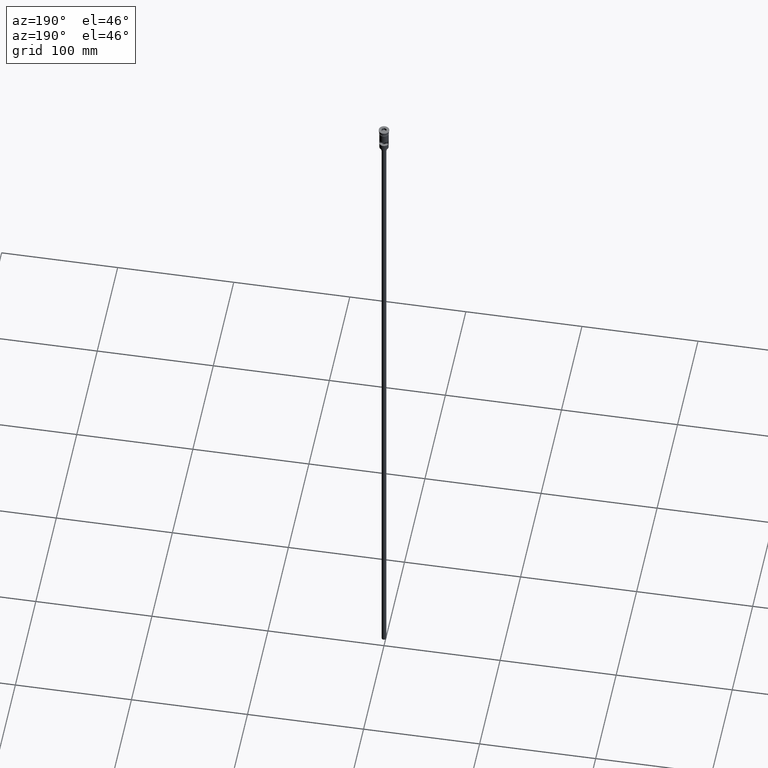
[diagram: clean part render]
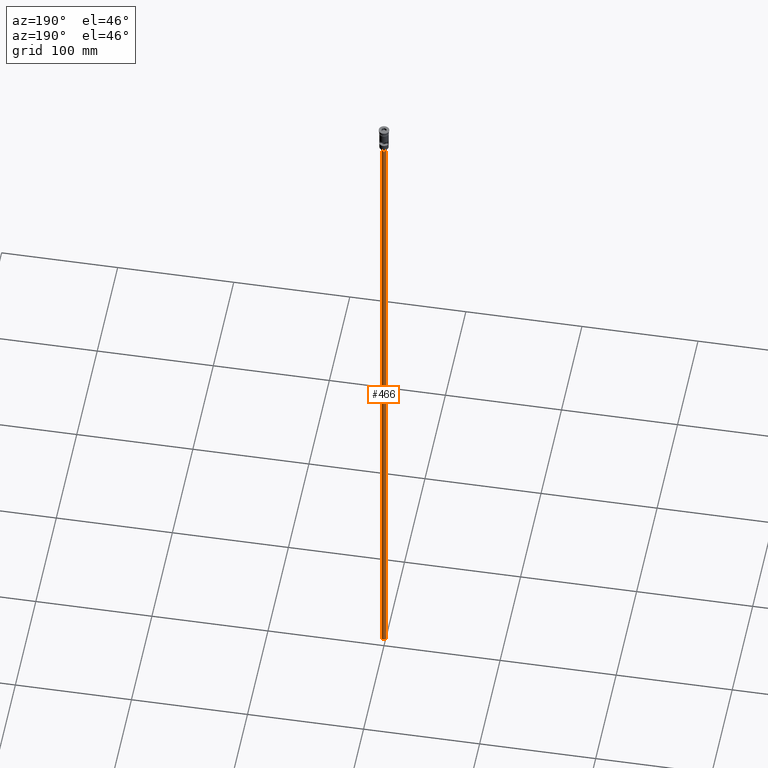
[diagram: same view with one face highlighted and labeled with its STEP entity id]
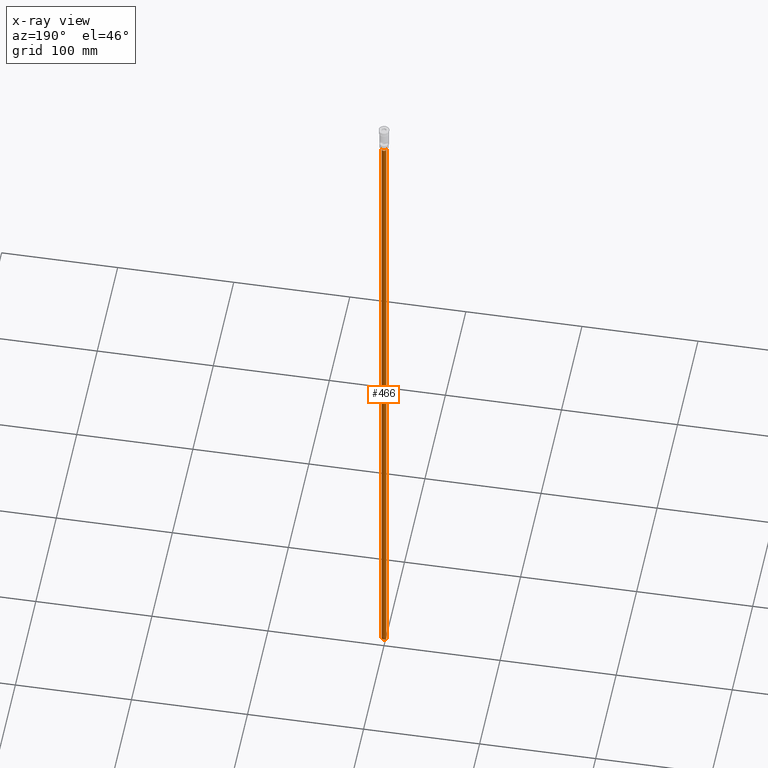
[diagram: x-ray of the same camera — body ghosted, the highlighted face saturated]
A machine part, auxiliary view. The second image highlights one B-rep face of the part: STEP entity #466.
The next image is the same camera in x-ray: the body ghosted, the highlighted face saturated — about 0% of this face is hidden behind the body in this view.
In plain terms, the highlighted cylindrical surface (edge-blend (fillet) strip) has radius 2 mm, axis along (-0, -0, 1).
Its self-contained STEP definition (entity closure, byte-faithful):
#69 = CARTESIAN_POINT ( 'NONE',  ( 0.000000000000000000, 0.000000000000000000, -23.49999999999999645 ) ) ;
#103 = CARTESIAN_POINT ( 'NONE',  ( -2.000000000000000000, 2.449293598294706414E-16, -620.4999999999998863 ) ) ;
#107 = DIRECTION ( 'NONE',  ( -0.000000000000000000, -0.000000000000000000, 1.000000000000000000 ) ) ;
#118 = ORIENTED_EDGE ( 'NONE', *, *, #374, .T. ) ;
#137 = VECTOR ( 'NONE', #415, 1000.000000000000000 ) ;
#138 = CARTESIAN_POINT ( 'NONE',  ( -2.000000000000000000, 2.449293598294706414E-16, -620.4999999999998863 ) ) ;
#208 = CIRCLE ( 'NONE', #842, 2.000000000000000000 ) ;
#224 = ORIENTED_EDGE ( 'NONE', *, *, #1040, .F. ) ;
#228 = VERTEX_POINT ( 'NONE', #393 ) ;
#233 = AXIS2_PLACEMENT_3D ( 'NONE', #442, #428, #1591 ) ;
#274 = VERTEX_POINT ( 'NONE', #138 ) ;
#328 = DIRECTION ( 'NONE',  ( -0.000000000000000000, -0.000000000000000000, 1.000000000000000000 ) ) ;
#342 = VERTEX_POINT ( 'NONE', #676 ) ;
#374 = EDGE_CURVE ( 'NONE', #274, #1073, #695, .T. ) ;
#393 = CARTESIAN_POINT ( 'NONE',  ( 2.000000000000000000, 0.000000000000000000, -620.4999999999998863 ) ) ;
#397 = DIRECTION ( 'NONE',  ( 0.000000000000000000, 0.000000000000000000, -1.000000000000000000 ) ) ;
#415 = DIRECTION ( 'NONE',  ( -0.000000000000000000, -0.000000000000000000, 1.000000000000000000 ) ) ;
#428 = DIRECTION ( 'NONE',  ( 0.000000000000000000, 0.000000000000000000, -1.000000000000000000 ) ) ;
#442 = CARTESIAN_POINT ( 'NONE',  ( 0.000000000000000000, 0.000000000000000000, -620.4999999999998863 ) ) ;
#451 = CARTESIAN_POINT ( 'NONE',  ( 0.000000000000000000, 0.000000000000000000, -620.4999999999998863 ) ) ;
#466 = ADVANCED_FACE ( 'NONE', ( #1354 ), #1201, .T. ) ;
#676 = CARTESIAN_POINT ( 'NONE',  ( 2.000000000000000000, 0.000000000000000000, -23.49999999999999645 ) ) ;
#695 = LINE ( 'NONE', #103, #1026 ) ;
#842 = AXIS2_PLACEMENT_3D ( 'NONE', #69, #397, #1005 ) ;
#914 = EDGE_CURVE ( 'NONE', #1073, #342, #208, .T. ) ;
#925 = ORIENTED_EDGE ( 'NONE', *, *, #914, .T. ) ;
#964 = DIRECTION ( 'NONE',  ( 1.000000000000000000, 0.000000000000000000, 0.000000000000000000 ) ) ;
#1005 = DIRECTION ( 'NONE',  ( -1.000000000000000000, 0.000000000000000000, 0.000000000000000000 ) ) ;
#1026 = VECTOR ( 'NONE', #328, 1000.000000000000000 ) ;
#1040 = EDGE_CURVE ( 'NONE', #274, #228, #1302, .T. ) ;
#1073 = VERTEX_POINT ( 'NONE', #1582 ) ;
#1130 = LINE ( 'NONE', #1543, #137 ) ;
#1201 = CYLINDRICAL_SURFACE ( 'NONE', #1297, 2.000000000000000000 ) ;
#1261 = EDGE_LOOP ( 'NONE', ( #224, #118, #925, #1496 ) ) ;
#1273 = EDGE_CURVE ( 'NONE', #228, #342, #1130, .T. ) ;
#1297 = AXIS2_PLACEMENT_3D ( 'NONE', #451, #107, #964 ) ;
#1302 = CIRCLE ( 'NONE', #233, 2.000000000000000000 ) ;
#1354 = FACE_OUTER_BOUND ( 'NONE', #1261, .T. ) ;
#1496 = ORIENTED_EDGE ( 'NONE', *, *, #1273, .F. ) ;
#1543 = CARTESIAN_POINT ( 'NONE',  ( 2.000000000000000000, 0.000000000000000000, -620.4999999999998863 ) ) ;
#1582 = CARTESIAN_POINT ( 'NONE',  ( -2.000000000000000000, 2.449293598294706414E-16, -23.49999999999999645 ) ) ;
#1591 = DIRECTION ( 'NONE',  ( -1.000000000000000000, 0.000000000000000000, 0.000000000000000000 ) ) ;